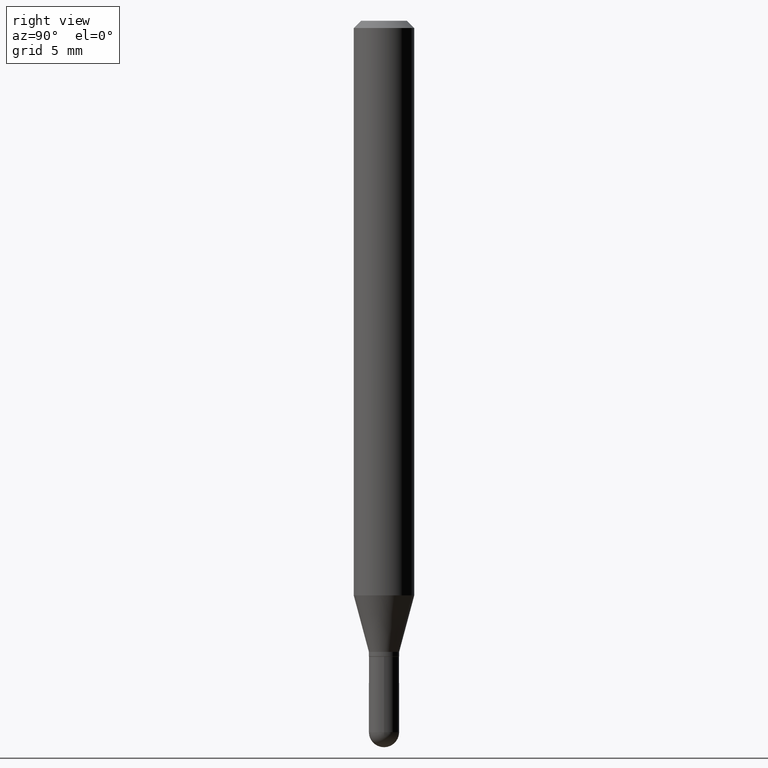
[diagram: clean part render]
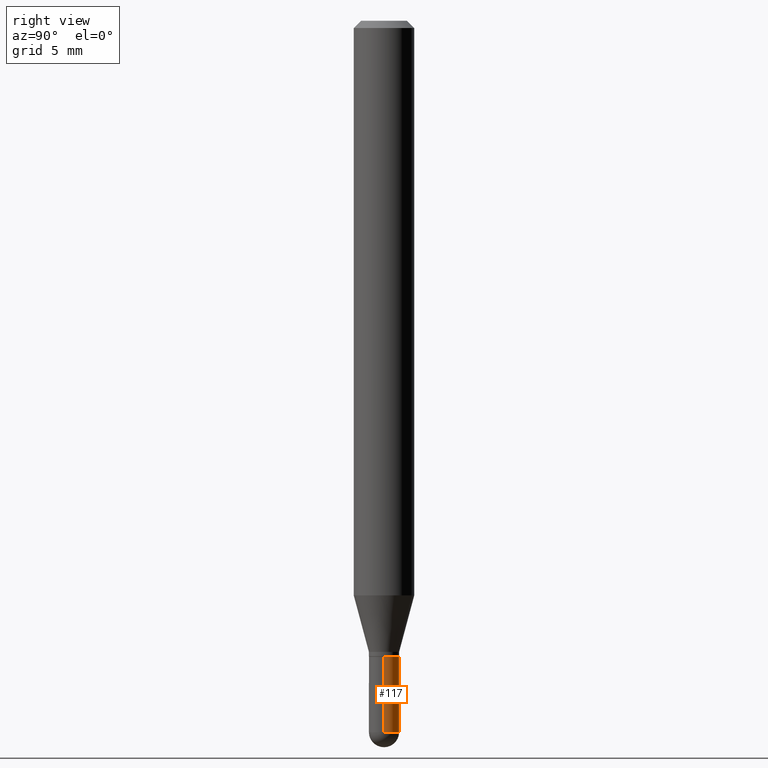
[diagram: same view with one face highlighted and labeled with its STEP entity id]
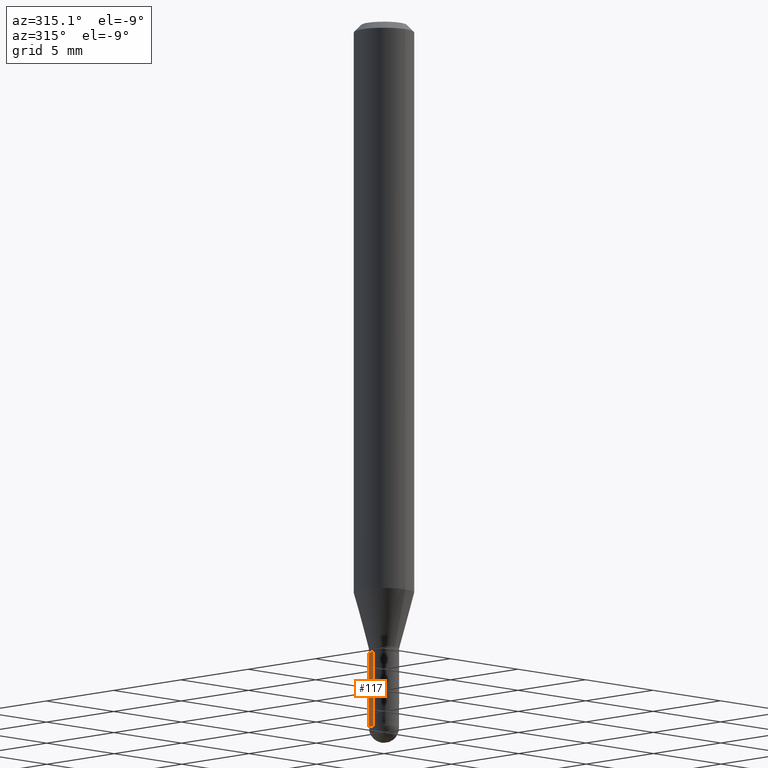
[diagram: same view with one face highlighted and labeled with its STEP entity id]
A machine part, right view. The second image highlights one B-rep face of the part: STEP entity #117.
A second angle (auxiliary view) of the same face is appended — the face is thin or edge-on in the first view.
In plain terms, the highlighted cylindrical surface (edge-blend (fillet) strip) has radius 0.7937 mm, axis along (-0, 0, 1).
Its self-contained STEP definition (entity closure, byte-faithful):
#28 = DIRECTION ( 'NONE',  ( 1.000000000000000000, -6.982962677686267499E-15, 0.000000000000000000 ) ) ;
#38 = CARTESIAN_POINT ( 'NONE',  ( -0.03124999999999956285, -4.634169502238430896E-15, -1.468749999999999556 ) ) ;
#55 = EDGE_CURVE ( 'NONE', #418, #89, #67, .T. ) ;
#67 = LINE ( 'NONE', #369, #302 ) ;
#69 = CARTESIAN_POINT ( 'NONE',  ( 2.182175836777293120E-16, 0.03124999999999452868, -1.468749999999999556 ) ) ;
#70 = ORIENTED_EDGE ( 'NONE', *, *, #132, .T. ) ;
#82 = AXIS2_PLACEMENT_3D ( 'NONE', #457, #100, #258 ) ;
#84 = CARTESIAN_POINT ( 'NONE',  ( 3.210900542521084024E-29, -4.584314997901049810E-15, -1.312999999999999945 ) ) ;
#85 = CARTESIAN_POINT ( 'NONE',  ( -0.03124999999999956285, 2.220446049250282019E-16, -1.537167215704636512E-30 ) ) ;
#89 = VERTEX_POINT ( 'NONE', #500 ) ;
#100 = DIRECTION ( 'NONE',  ( -2.445468806185136597E-29, 3.491481338843145583E-15, 1.000000000000000000 ) ) ;
#117 = ADVANCED_FACE ( 'NONE', ( #138 ), #140, .T. ) ;
#119 = ORIENTED_EDGE ( 'NONE', *, *, #485, .F. ) ;
#122 = AXIS2_PLACEMENT_3D ( 'NONE', #413, #377, #28 ) ;
#129 = LINE ( 'NONE', #85, #151 ) ;
#132 = EDGE_CURVE ( 'NONE', #418, #201, #362, .T. ) ;
#138 = FACE_OUTER_BOUND ( 'NONE', #233, .T. ) ;
#140 = CYLINDRICAL_SURFACE ( 'NONE', #501, 0.03124999999999956285 ) ;
#151 = VECTOR ( 'NONE', #341, 39.37007874015748143 ) ;
#175 = EDGE_CURVE ( 'NONE', #201, #243, #343, .T. ) ;
#201 = VERTEX_POINT ( 'NONE', #69 ) ;
#220 = AXIS2_PLACEMENT_3D ( 'NONE', #84, #239, #315 ) ;
#233 = EDGE_LOOP ( 'NONE', ( #352, #471, #119, #483, #70 ) ) ;
#239 = DIRECTION ( 'NONE',  ( -2.445468806185136597E-29, 3.491481338843145583E-15, 1.000000000000000000 ) ) ;
#243 = VERTEX_POINT ( 'NONE', #38 ) ;
#258 = DIRECTION ( 'NONE',  ( 1.000000000000000000, -6.982962677686267499E-15, 0.000000000000000000 ) ) ;
#297 = CARTESIAN_POINT ( 'NONE',  ( 0.000000000000000000, 0.000000000000000000, 0.000000000000000000 ) ) ;
#302 = VECTOR ( 'NONE', #461, 39.37007874015748143 ) ;
#315 = DIRECTION ( 'NONE',  ( 1.000000000000000000, -6.982962677686267499E-15, 0.000000000000000000 ) ) ;
#317 = CARTESIAN_POINT ( 'NONE',  ( 0.03124999999999956285, -5.074431690841150939E-15, -1.468749999999999556 ) ) ;
#330 = CIRCLE ( 'NONE', #220, 0.03124999999999956285 ) ;
#341 = DIRECTION ( 'NONE',  ( -2.445468806185136877E-29, 3.491481338843145188E-15, 1.000000000000000000 ) ) ;
#342 = DIRECTION ( 'NONE',  ( -2.445468806185136597E-29, 3.491481338843145583E-15, 1.000000000000000000 ) ) ;
#343 = CIRCLE ( 'NONE', #122, 0.03124999999999956285 ) ;
#352 = ORIENTED_EDGE ( 'NONE', *, *, #175, .T. ) ;
#362 = CIRCLE ( 'NONE', #82, 0.03124999999999956285 ) ;
#364 = CARTESIAN_POINT ( 'NONE',  ( -0.03124999999999956285, -4.634169502238430896E-15, -1.312999999999999945 ) ) ;
#369 = CARTESIAN_POINT ( 'NONE',  ( 0.03124999999999956285, -2.182175836776928025E-16, 1.523805242436208565E-30 ) ) ;
#372 = DIRECTION ( 'NONE',  ( 1.000000000000000000, -6.982962677686267499E-15, 4.876176775795935793E-29 ) ) ;
#376 = EDGE_CURVE ( 'NONE', #243, #495, #129, .T. ) ;
#377 = DIRECTION ( 'NONE',  ( -2.445468806185136597E-29, 3.491481338843145583E-15, 1.000000000000000000 ) ) ;
#413 = CARTESIAN_POINT ( 'NONE',  ( 3.591782309084418255E-29, -5.128113216425867498E-15, -1.468749999999999556 ) ) ;
#418 = VERTEX_POINT ( 'NONE', #317 ) ;
#457 = CARTESIAN_POINT ( 'NONE',  ( 3.591782309084418255E-29, -5.128113216425867498E-15, -1.468749999999999556 ) ) ;
#461 = DIRECTION ( 'NONE',  ( -2.445468806185136877E-29, 3.491481338843145188E-15, 1.000000000000000000 ) ) ;
#471 = ORIENTED_EDGE ( 'NONE', *, *, #376, .T. ) ;
#483 = ORIENTED_EDGE ( 'NONE', *, *, #55, .F. ) ;
#485 = EDGE_CURVE ( 'NONE', #89, #495, #330, .T. ) ;
#495 = VERTEX_POINT ( 'NONE', #364 ) ;
#500 = CARTESIAN_POINT ( 'NONE',  ( 0.03124999999999956285, -4.802532581578742489E-15, -1.312999999999999945 ) ) ;
#501 = AXIS2_PLACEMENT_3D ( 'NONE', #297, #342, #372 ) ;